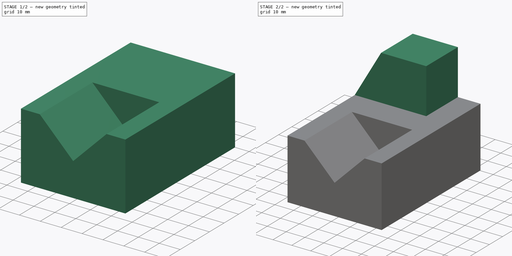
[diagram: build sequence overview — one tinted view per stage of 2, left to right]
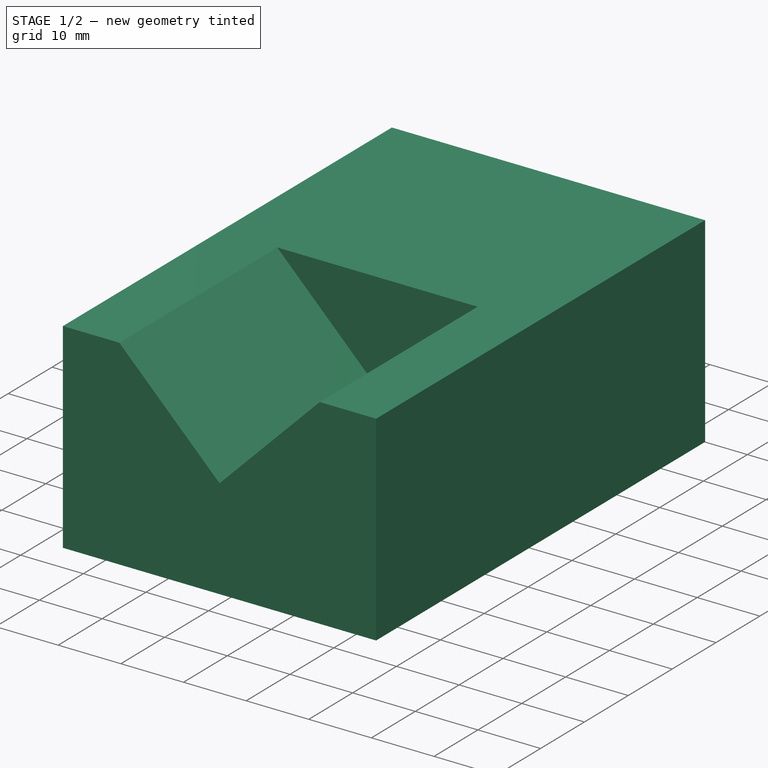
[diagram: stage 1 of 2 — iso view after this stage's code; geometry added in this stage tinted green]
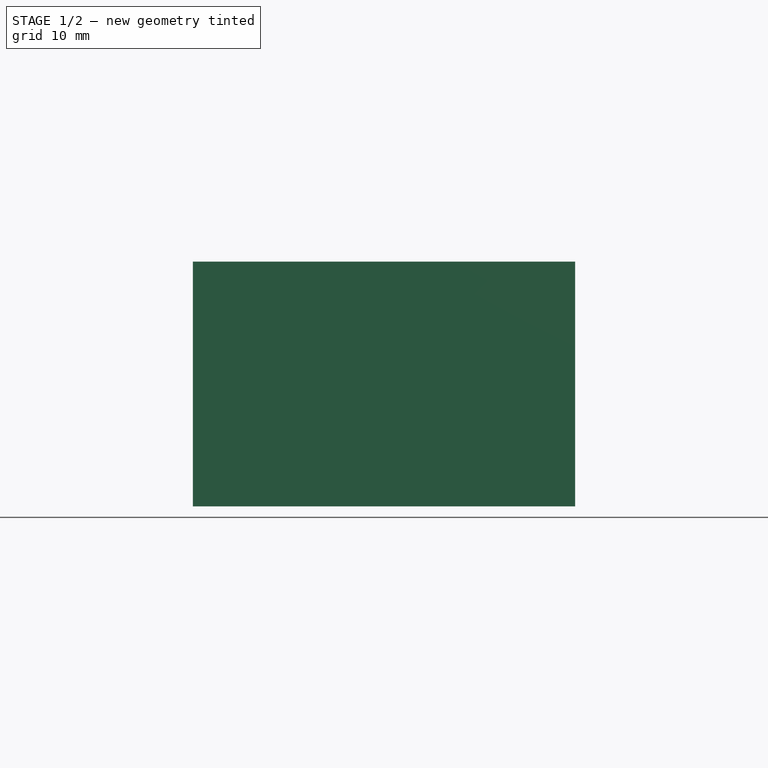
[diagram: stage 1 of 2 — front view after this stage's code; geometry added in this stage tinted green]
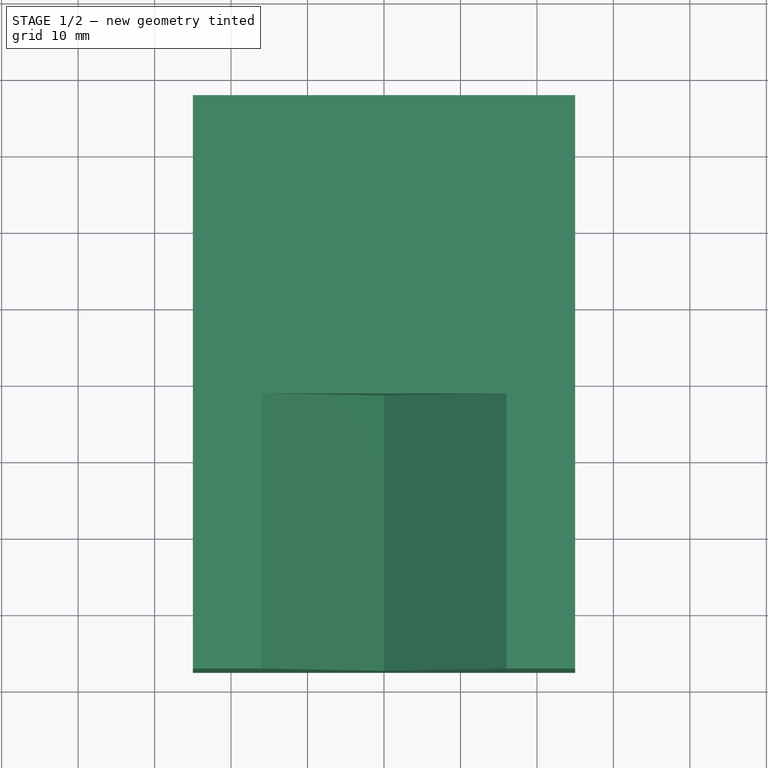
[diagram: stage 1 of 2 — top view after this stage's code; geometry added in this stage tinted green]
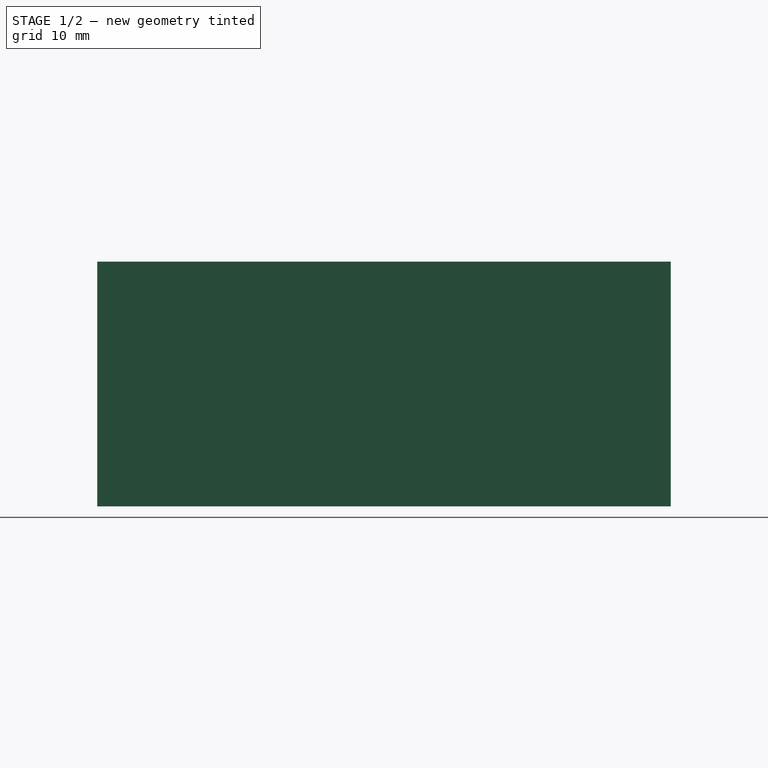
[diagram: stage 1 of 2 — right view after this stage's code; geometry added in this stage tinted green]
FCSTD DOCUMENT  (FreeCAD 0.16R)
Label: Fig 3.26 Final
License: All rights reserved
LicenseURL: http://en.wikipedia.org/wiki/All_rights_reserved
objects: Sketcher::SketchObject×4, PartDesign::Pad×2, PartDesign::Pocket×2
note: 12 computed .brp shape members not serialized (recipe doc carries the construction recipe); baked Part::Feature solids carry a one-line shape summary decoded from their .brp

FEATURE [Sketcher::SketchObject] Sketch
  sketch-geometry (4):
    g0: LineSegment StartX=-25 StartY=37.5 StartZ=0 EndX=25 EndY=37.5 EndZ=0
    g1: LineSegment StartX=25 StartY=37.5 StartZ=0 EndX=25 EndY=-37.5 EndZ=0
    g2: LineSegment StartX=25 StartY=-37.5 StartZ=0 EndX=-25 EndY=-37.5 EndZ=0
    g3: LineSegment StartX=-25 StartY=-37.5 StartZ=0 EndX=-25 EndY=37.5 EndZ=0
  constraints (12):
    c: Coincident(g0,g1)
    c: Coincident(g1,g2)
    c: Coincident(g2,g3)
    c: Coincident(g3,g0)
    c: Horizontal(g0)
    c: Horizontal(g2)
    c: Vertical(g1)
    c: Vertical(g3)
    c: DistanceY(g3,g3) = 75
    c: DistanceX(g0,g0) = 50
    c: Symmetric(g0,g0,g-2)
    c: Symmetric(g2,g0,g-1)
FEATURE [PartDesign::Pad] Pad
  Length = 32
  Length2 = 100
  Sketch = -> Sketch
  Type = 0
FEATURE [Sketcher::SketchObject] Sketch001
  ExternalGeometry = -> [Pad]
  Placement = pos=(0,-37.5,0) rot=(1,0,0;1.5708rad)
  Support = -> Pad [Face3]
  sketch-geometry (3):
    g0: LineSegment StartX=-16 StartY=32 StartZ=0 EndX=16 EndY=32 EndZ=0
    g1: LineSegment StartX=16 StartY=32 StartZ=0 EndX=0 EndY=16 EndZ=0
    g2: LineSegment StartX=0 StartY=16 StartZ=0 EndX=-16 EndY=32 EndZ=0
  constraints (9):
    c: Horizontal(g0)
    c: Coincident(g0,g1)
    c: PointOnObject(g1,g-2)
    c: Coincident(g1,g2)
    c: Coincident(g2,g0)
    c: DistanceX(g-3,g0) = 9
    c: Symmetric(g0,g0,g-2)
    c: PointOnObject(g0,g-3)
    c: DistanceY(g-1,g1) = 16
FEATURE [PartDesign::Pocket] Pocket
  Length = 36
  Sketch = -> Sketch001
  Type = 0
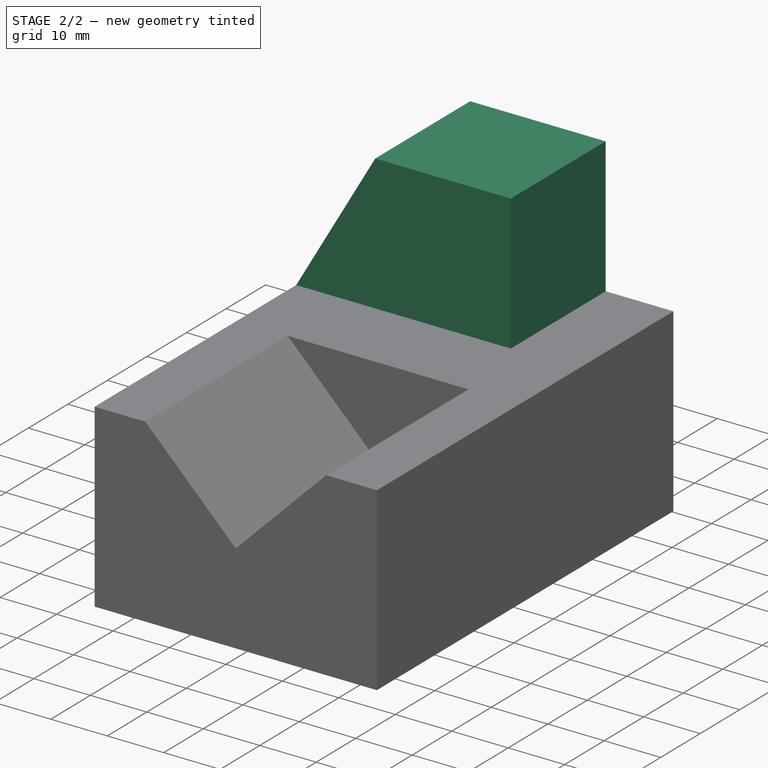
[diagram: stage 2 of 2 — iso view after this stage's code; geometry added in this stage tinted green]
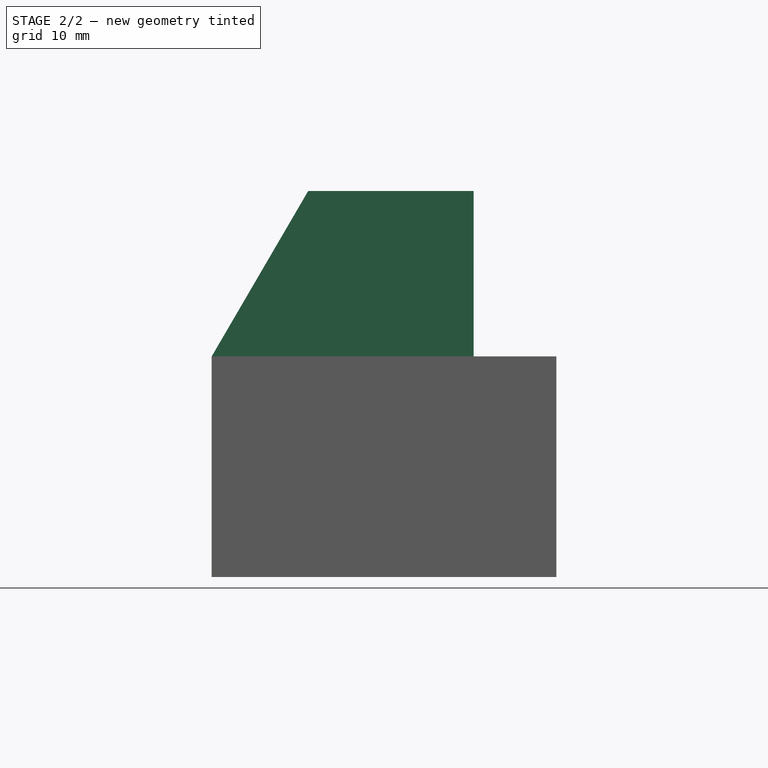
[diagram: stage 2 of 2 — front view after this stage's code; geometry added in this stage tinted green]
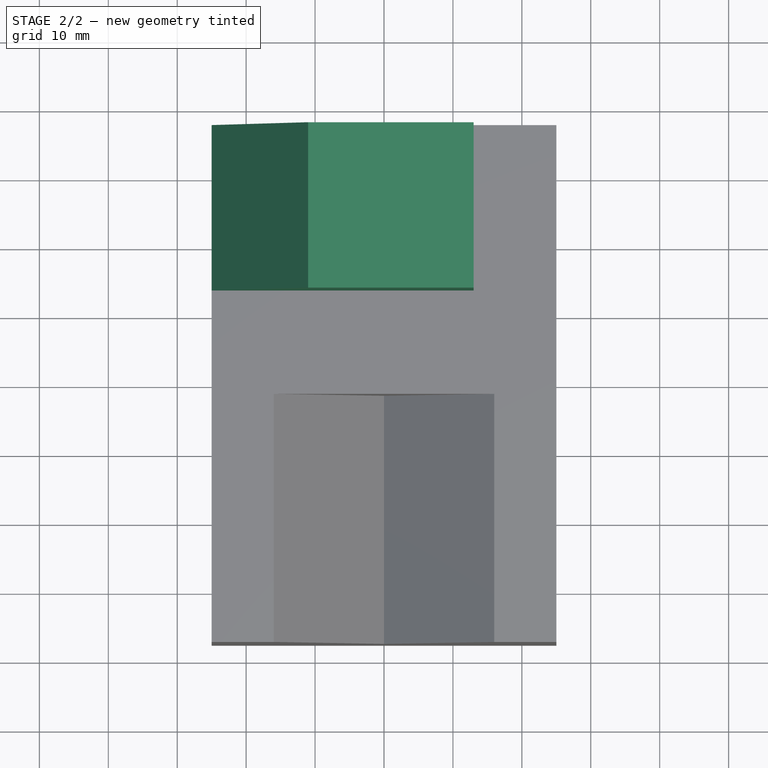
[diagram: stage 2 of 2 — top view after this stage's code; geometry added in this stage tinted green]
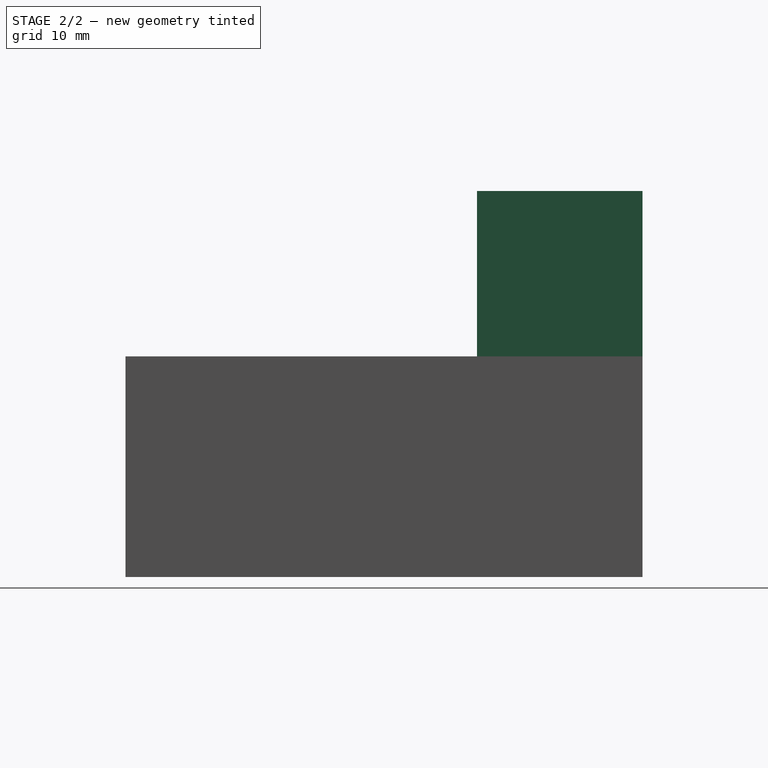
[diagram: stage 2 of 2 — right view after this stage's code; geometry added in this stage tinted green]
FEATURE [Sketcher::SketchObject] Sketch002
  ExternalGeometry = -> [Pocket]
  Placement = pos=(0,0,32) rot=(0,0,1;0rad)
  Support = -> Pocket [Face5]
  sketch-geometry (4):
    g0: LineSegment StartX=-25 StartY=37.5 StartZ=0 EndX=13 EndY=37.5 EndZ=0
    g1: LineSegment StartX=13 StartY=37.5 StartZ=0 EndX=13 EndY=13.5 EndZ=0
    g2: LineSegment StartX=13 StartY=13.5 StartZ=0 EndX=-25 EndY=13.5 EndZ=0
    g3: LineSegment StartX=-25 StartY=13.5 StartZ=0 EndX=-25 EndY=37.5 EndZ=0
  constraints (11):
    c: Coincident(g0,g1)
    c: Coincident(g1,g2)
    c: Coincident(g2,g3)
    c: Coincident(g3,g0)
    c: Horizontal(g0)
    c: Horizontal(g2)
    c: Vertical(g1)
    c: Vertical(g3)
    c: DistanceX(g0,g-3) = 12
    c: DistanceY(g1,g1) = 24
    c: Coincident(g0,g-4)
FEATURE [PartDesign::Pad] Pad001
  Length = 24
  Length2 = 100
  Sketch = -> Sketch002
  Type = 0
FEATURE [Sketcher::SketchObject] Sketch003
  ExternalGeometry = -> [Pad001]
  Placement = pos=(0,13.5,0) rot=(1,0,0;1.5708rad)
  Support = -> Pad001 [Face10]
  sketch-geometry (3):
    g0: LineSegment StartX=-25 StartY=56 StartZ=0 EndX=-11 EndY=56 EndZ=0
    g1: LineSegment StartX=-11 StartY=56 StartZ=0 EndX=-25 EndY=32 EndZ=0
    g2: LineSegment StartX=-25 StartY=32 StartZ=0 EndX=-25 EndY=56 EndZ=0
  constraints (8):
    c: Coincident(g0,g1)
    c: Coincident(g1,g2)
    c: Vertical(g2)
    c: DistanceX(g0,g-3) = 24
    c: Horizontal(g0)
    c: Coincident(g2,g-3)
    c: Coincident(g0,g2)
    c: Coincident(g-4,g1)
FEATURE [PartDesign::Pocket] Pocket001
  Length = 5
  Sketch = -> Sketch003
  Type = 1
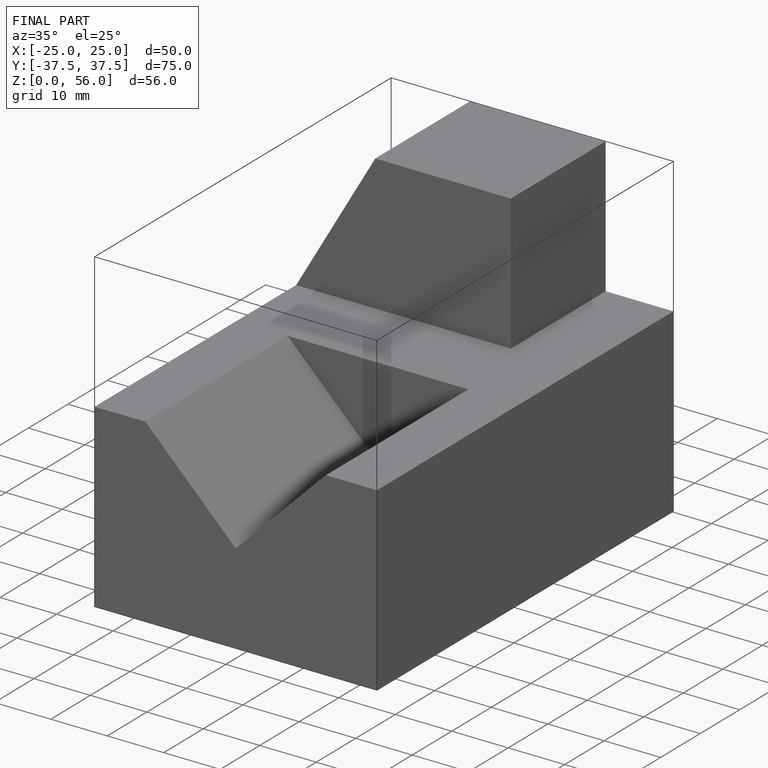
[diagram: finished part — iso view with bounding-box wireframe]
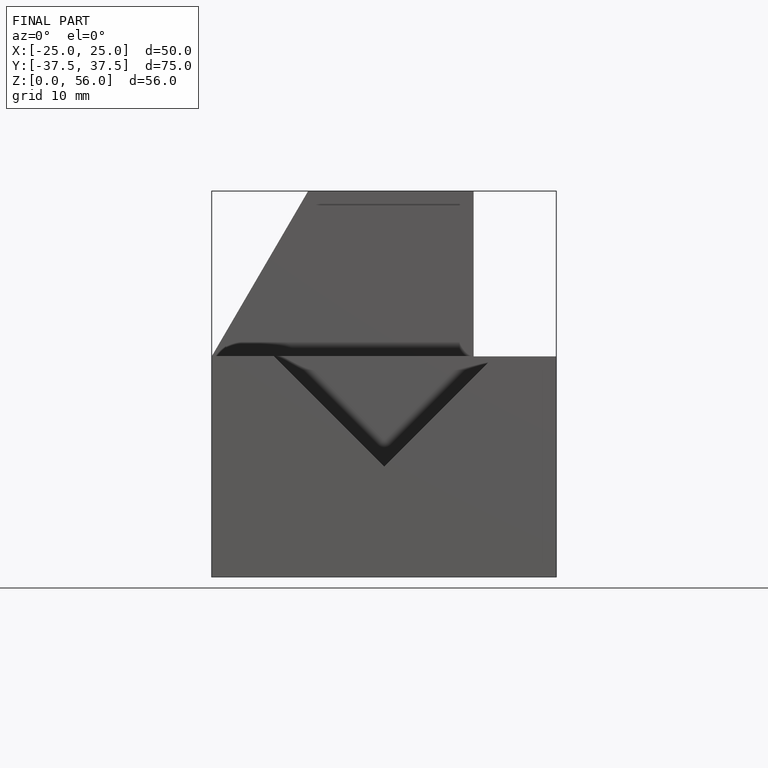
[diagram: finished part — front view with bounding-box wireframe]
